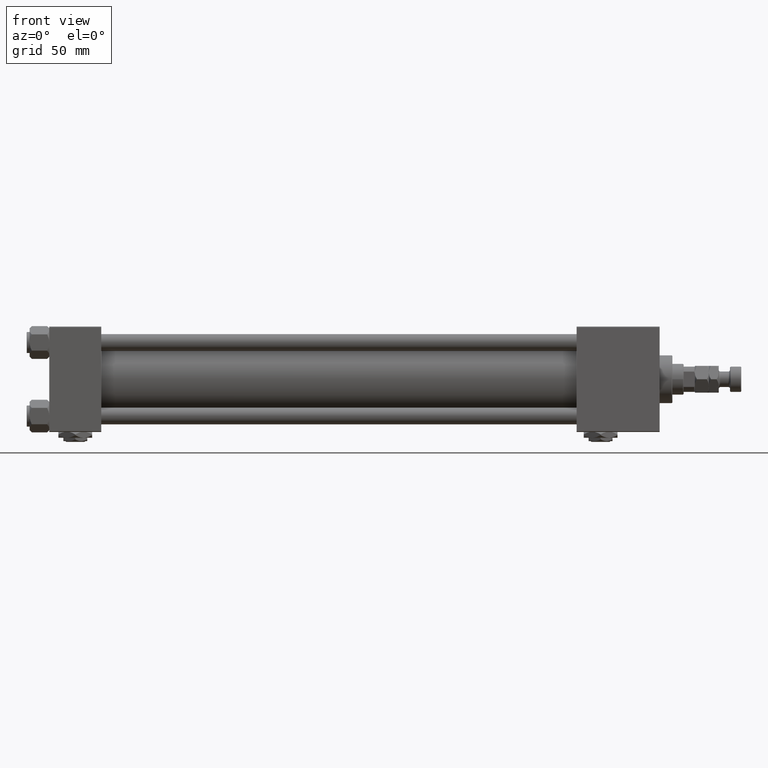
[diagram: clean part render]
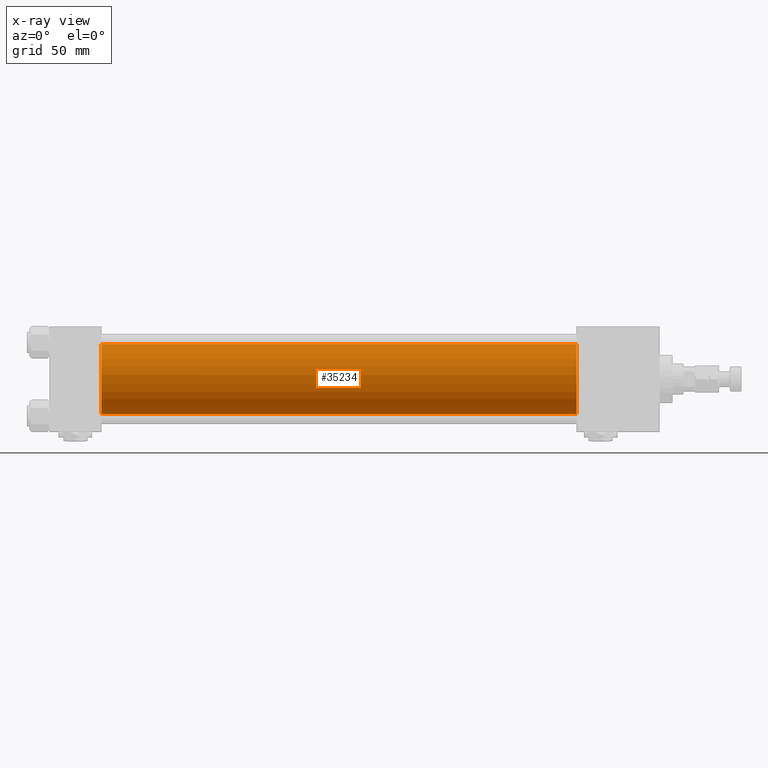
[diagram: x-ray — body ghosted, one internal face saturated and labeled with its STEP entity id]
A machine part, front view, then the same camera in x-ray: the body is ghosted and one INTERNAL B-rep face — a face not visible from any outside direction — is saturated and labeled: STEP entity #35234.
In plain terms, the highlighted cylindrical surface (edge-blend (fillet) strip) has radius 25 mm, axis along (-1, -0, -0).
Its self-contained STEP definition (entity closure, byte-faithful):
#966 = ORIENTED_EDGE ( 'NONE', *, *, #26919, .T. ) ;
#3563 = EDGE_CURVE ( 'NONE', #25288, #32492, #50761, .T. ) ;
#6306 = CIRCLE ( 'NONE', #20239, 25.00000000000000000 ) ;
#6350 = EDGE_CURVE ( 'NONE', #47022, #41780, #6306, .T. ) ;
#6827 = EDGE_CURVE ( 'NONE', #25288, #47022, #35740, .T. ) ;
#9714 = CARTESIAN_POINT ( 'NONE',  ( 37.00000000000000000, 4.595317839031724996E-16, -25.00000000000000000 ) ) ;
#9946 = CARTESIAN_POINT ( 'NONE',  ( 375.0000000000000000, 4.595317839031724996E-16, -25.00000000000000000 ) ) ;
#10719 = DIRECTION ( 'NONE',  ( 1.000000000000000000, 0.000000000000000000, 0.000000000000000000 ) ) ;
#11925 = EDGE_LOOP ( 'NONE', ( #11926, #966, #49854, #48027 ) ) ;
#11926 = ORIENTED_EDGE ( 'NONE', *, *, #3563, .T. ) ;
#14538 = CARTESIAN_POINT ( 'NONE',  ( 37.00000000000000000, -2.602085213965210642E-15, 0.000000000000000000 ) ) ;
#15076 = DIRECTION ( 'NONE',  ( 0.000000000000000000, 0.000000000000000000, 1.000000000000000000 ) ) ;
#15845 = CARTESIAN_POINT ( 'NONE',  ( 375.0000000000000000, -2.602085213965210642E-15, 25.00000000000000000 ) ) ;
#16513 = CARTESIAN_POINT ( 'NONE',  ( 375.0000000000000000, -2.602085213965210642E-15, 0.000000000000000000 ) ) ;
#20239 = AXIS2_PLACEMENT_3D ( 'NONE', #14538, #10719, #43251 ) ;
#21758 = VECTOR ( 'NONE', #42215, 1000.000000000000000 ) ;
#22768 = AXIS2_PLACEMENT_3D ( 'NONE', #16513, #50143, #25523 ) ;
#25288 = VERTEX_POINT ( 'NONE', #15845 ) ;
#25523 = DIRECTION ( 'NONE',  ( 0.000000000000000000, 0.000000000000000000, -1.000000000000000000 ) ) ;
#26827 = CARTESIAN_POINT ( 'NONE',  ( 375.0000000000000000, 4.595317839031724996E-16, -25.00000000000000000 ) ) ;
#26919 = EDGE_CURVE ( 'NONE', #32492, #41780, #51229, .T. ) ;
#30732 = CYLINDRICAL_SURFACE ( 'NONE', #47237, 25.00000000000000000 ) ;
#32492 = VERTEX_POINT ( 'NONE', #26827 ) ;
#35234 = ADVANCED_FACE ( 'NONE', ( #49236 ), #30732, .F. ) ;
#35466 = CARTESIAN_POINT ( 'NONE',  ( 375.0000000000000000, -2.602085213965210642E-15, 25.00000000000000000 ) ) ;
#35740 = LINE ( 'NONE', #35466, #51718 ) ;
#35855 = CARTESIAN_POINT ( 'NONE',  ( 375.0000000000000000, -2.602085213965210642E-15, 0.000000000000000000 ) ) ;
#35892 = CARTESIAN_POINT ( 'NONE',  ( 37.00000000000000000, -2.602085213965210642E-15, 25.00000000000000000 ) ) ;
#39565 = DIRECTION ( 'NONE',  ( -1.000000000000000000, -0.000000000000000000, -0.000000000000000000 ) ) ;
#41780 = VERTEX_POINT ( 'NONE', #9714 ) ;
#42215 = DIRECTION ( 'NONE',  ( -1.000000000000000000, -0.000000000000000000, -0.000000000000000000 ) ) ;
#43251 = DIRECTION ( 'NONE',  ( 0.000000000000000000, 0.000000000000000000, -1.000000000000000000 ) ) ;
#45128 = DIRECTION ( 'NONE',  ( -1.000000000000000000, -0.000000000000000000, -0.000000000000000000 ) ) ;
#47022 = VERTEX_POINT ( 'NONE', #35892 ) ;
#47237 = AXIS2_PLACEMENT_3D ( 'NONE', #35855, #45128, #15076 ) ;
#48027 = ORIENTED_EDGE ( 'NONE', *, *, #6827, .F. ) ;
#49236 = FACE_OUTER_BOUND ( 'NONE', #11925, .T. ) ;
#49854 = ORIENTED_EDGE ( 'NONE', *, *, #6350, .F. ) ;
#50143 = DIRECTION ( 'NONE',  ( 1.000000000000000000, 0.000000000000000000, 0.000000000000000000 ) ) ;
#50761 = CIRCLE ( 'NONE', #22768, 25.00000000000000000 ) ;
#51229 = LINE ( 'NONE', #9946, #21758 ) ;
#51718 = VECTOR ( 'NONE', #39565, 1000.000000000000000 ) ;